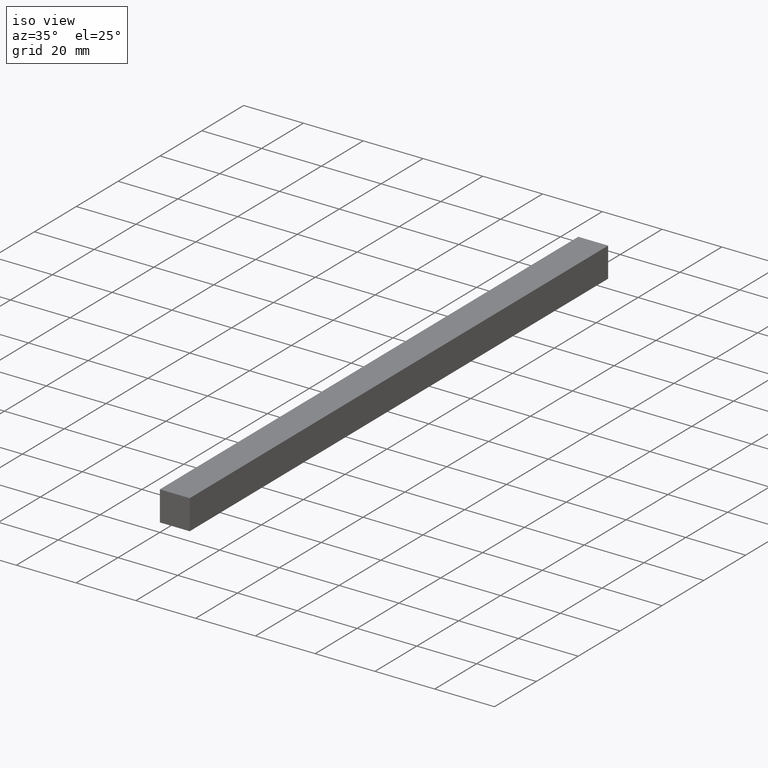
[diagram: clean part render]
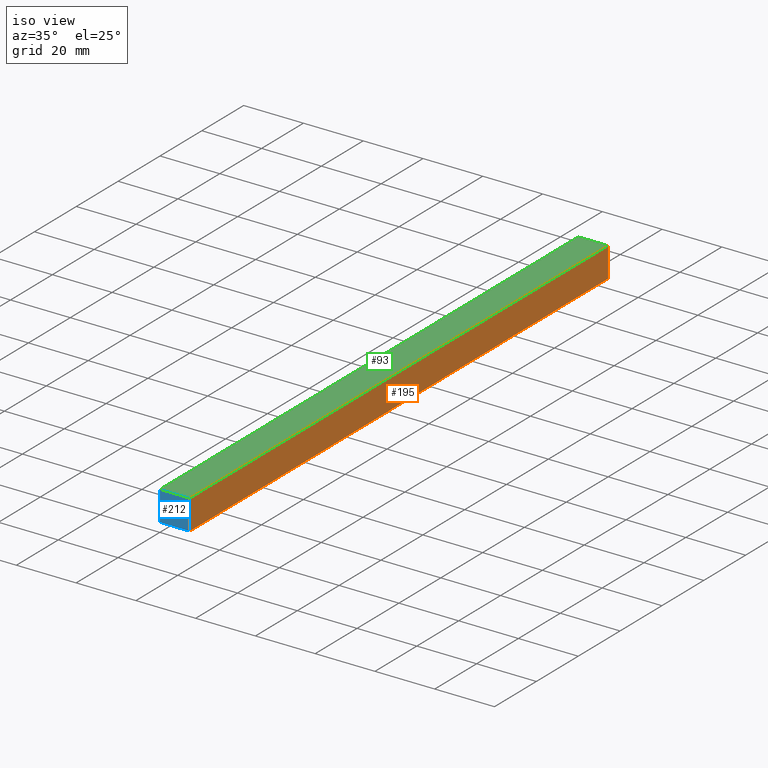
[diagram: same view with three faces highlighted in distinct colors, each labeled with its STEP entity id]
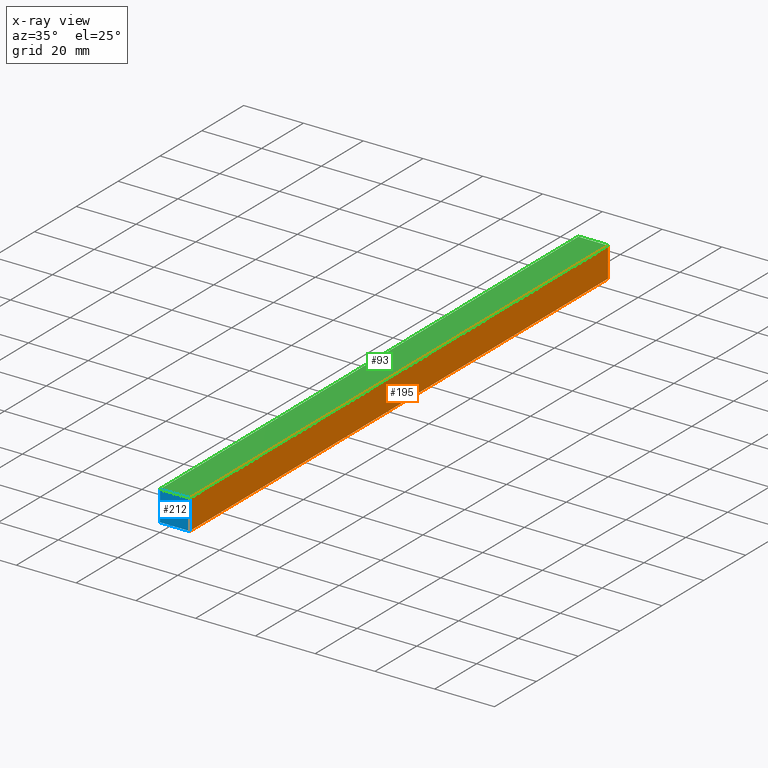
[diagram: x-ray of the same camera — body ghosted, the three highlighted faces saturated]
A machine part, iso view with three faces highlighted in distinct colors.
The next image is the same camera in x-ray (body ghosted, the three faces saturated) — at least one of them is partly hidden behind the body in this view.
Their STEP definitions:

[orange] entity #195 — the highlighted planar face has unit normal (1, 0, 0).
#5 = VERTEX_POINT ( 'NONE', #162 ) ;
#6 = DIRECTION ( 'NONE',  ( 0.0000000000000000000, -1.000000000000000000, 0.0000000000000000000 ) ) ;
#7 = FACE_OUTER_BOUND ( 'NONE', #209, .T. ) ;
#14 = LINE ( 'NONE', #127, #64 ) ;
#22 = VERTEX_POINT ( 'NONE', #87 ) ;
#27 = VECTOR ( 'NONE', #6, 1000.000000000000000 ) ;
#37 = VECTOR ( 'NONE', #148, 1000.000000000000000 ) ;
#38 = LINE ( 'NONE', #45, #27 ) ;
#42 = VERTEX_POINT ( 'NONE', #95 ) ;
#45 = CARTESIAN_POINT ( 'NONE',  ( 10.00000000000000000, 1000.000000000000000, 0.0000000000000000000 ) ) ;
#48 = VERTEX_POINT ( 'NONE', #170 ) ;
#49 = LINE ( 'NONE', #206, #199 ) ;
#51 = EDGE_CURVE ( 'NONE', #5, #48, #38, .T. ) ;
#61 = DIRECTION ( 'NONE',  ( -0.0000000000000000000, -0.0000000000000000000, 1.000000000000000000 ) ) ;
#64 = VECTOR ( 'NONE', #61, 1000.000000000000000 ) ;
#73 = AXIS2_PLACEMENT_3D ( 'NONE', #172, #119, #129 ) ;
#87 = CARTESIAN_POINT ( 'NONE',  ( 10.00000000000000000, 0.0000000000000000000, 10.00000000000000000 ) ) ;
#95 = CARTESIAN_POINT ( 'NONE',  ( 10.00000000000000000, 200.0000000000000000, 10.00000000000000000 ) ) ;
#119 = DIRECTION ( 'NONE',  ( 1.000000000000000000, 0.0000000000000000000, 0.0000000000000000000 ) ) ;
#120 = ORIENTED_EDGE ( 'NONE', *, *, #194, .T. ) ;
#127 = CARTESIAN_POINT ( 'NONE',  ( 10.00000000000000000, 0.0000000000000000000, 0.0000000000000000000 ) ) ;
#129 = DIRECTION ( 'NONE',  ( 0.0000000000000000000, 0.0000000000000000000, -1.000000000000000000 ) ) ;
#148 = DIRECTION ( 'NONE',  ( 0.0000000000000000000, -1.000000000000000000, 0.0000000000000000000 ) ) ;
#149 = ORIENTED_EDGE ( 'NONE', *, *, #51, .F. ) ;
#159 = CARTESIAN_POINT ( 'NONE',  ( 10.00000000000000000, 1000.000000000000000, 10.00000000000000000 ) ) ;
#162 = CARTESIAN_POINT ( 'NONE',  ( 10.00000000000000000, 200.0000000000000000, 0.0000000000000000000 ) ) ;
#167 = PLANE ( 'NONE',  #73 ) ;
#169 = EDGE_CURVE ( 'NONE', #48, #22, #14, .T. ) ;
#170 = CARTESIAN_POINT ( 'NONE',  ( 10.00000000000000000, 0.0000000000000000000, 0.0000000000000000000 ) ) ;
#172 = CARTESIAN_POINT ( 'NONE',  ( 10.00000000000000000, 1000.000000000000000, 0.0000000000000000000 ) ) ;
#184 = LINE ( 'NONE', #159, #37 ) ;
#190 = ORIENTED_EDGE ( 'NONE', *, *, #169, .F. ) ;
#194 = EDGE_CURVE ( 'NONE', #42, #22, #184, .T. ) ;
#195 = ADVANCED_FACE ( 'NONE', ( #7 ), #167, .T. ) ;
#196 = EDGE_CURVE ( 'NONE', #5, #42, #49, .T. ) ;
#199 = VECTOR ( 'NONE', #226, 1000.000000000000000 ) ;
#206 = CARTESIAN_POINT ( 'NONE',  ( 10.00000000000000000, 200.0000000000000000, 0.0000000000000000000 ) ) ;
#209 = EDGE_LOOP ( 'NONE', ( #190, #149, #218, #120 ) ) ;
#218 = ORIENTED_EDGE ( 'NONE', *, *, #196, .T. ) ;
#226 = DIRECTION ( 'NONE',  ( -0.0000000000000000000, -0.0000000000000000000, 1.000000000000000000 ) ) ;

[blue] entity #212 — the highlighted planar face has unit normal (0, 1, 0).
#14 = LINE ( 'NONE', #127, #64 ) ;
#16 = EDGE_CURVE ( 'NONE', #62, #118, #231, .T. ) ;
#18 = PLANE ( 'NONE',  #99 ) ;
#22 = VERTEX_POINT ( 'NONE', #87 ) ;
#24 = DIRECTION ( 'NONE',  ( -0.0000000000000000000, 1.000000000000000000, 0.0000000000000000000 ) ) ;
#36 = DIRECTION ( 'NONE',  ( -1.000000000000000000, -0.0000000000000000000, -0.0000000000000000000 ) ) ;
#47 = LINE ( 'NONE', #140, #115 ) ;
#48 = VERTEX_POINT ( 'NONE', #170 ) ;
#61 = DIRECTION ( 'NONE',  ( -0.0000000000000000000, -0.0000000000000000000, 1.000000000000000000 ) ) ;
#62 = VERTEX_POINT ( 'NONE', #211 ) ;
#64 = VECTOR ( 'NONE', #61, 1000.000000000000000 ) ;
#65 = CARTESIAN_POINT ( 'NONE',  ( 0.0000000000000000000, 0.0000000000000000000, 0.0000000000000000000 ) ) ;
#69 = ORIENTED_EDGE ( 'NONE', *, *, #169, .T. ) ;
#72 = LINE ( 'NONE', #85, #123 ) ;
#74 = VECTOR ( 'NONE', #124, 1000.000000000000000 ) ;
#85 = CARTESIAN_POINT ( 'NONE',  ( 0.0000000000000000000, 0.0000000000000000000, 10.00000000000000000 ) ) ;
#87 = CARTESIAN_POINT ( 'NONE',  ( 10.00000000000000000, 0.0000000000000000000, 10.00000000000000000 ) ) ;
#99 = AXIS2_PLACEMENT_3D ( 'NONE', #65, #24, #163 ) ;
#113 = ORIENTED_EDGE ( 'NONE', *, *, #179, .T. ) ;
#115 = VECTOR ( 'NONE', #151, 1000.000000000000000 ) ;
#116 = CARTESIAN_POINT ( 'NONE',  ( 0.0000000000000000000, 0.0000000000000000000, 0.0000000000000000000 ) ) ;
#118 = VERTEX_POINT ( 'NONE', #193 ) ;
#123 = VECTOR ( 'NONE', #36, 1000.000000000000000 ) ;
#124 = DIRECTION ( 'NONE',  ( -0.0000000000000000000, -0.0000000000000000000, -1.000000000000000000 ) ) ;
#127 = CARTESIAN_POINT ( 'NONE',  ( 10.00000000000000000, 0.0000000000000000000, 0.0000000000000000000 ) ) ;
#131 = EDGE_CURVE ( 'NONE', #118, #48, #47, .T. ) ;
#137 = ORIENTED_EDGE ( 'NONE', *, *, #131, .T. ) ;
#140 = CARTESIAN_POINT ( 'NONE',  ( 0.0000000000000000000, 0.0000000000000000000, 0.0000000000000000000 ) ) ;
#143 = FACE_OUTER_BOUND ( 'NONE', #202, .T. ) ;
#151 = DIRECTION ( 'NONE',  ( 1.000000000000000000, -0.0000000000000000000, -0.0000000000000000000 ) ) ;
#163 = DIRECTION ( 'NONE',  ( 1.000000000000000000, 0.0000000000000000000, 0.0000000000000000000 ) ) ;
#169 = EDGE_CURVE ( 'NONE', #48, #22, #14, .T. ) ;
#170 = CARTESIAN_POINT ( 'NONE',  ( 10.00000000000000000, 0.0000000000000000000, 0.0000000000000000000 ) ) ;
#179 = EDGE_CURVE ( 'NONE', #22, #62, #72, .T. ) ;
#193 = CARTESIAN_POINT ( 'NONE',  ( 0.0000000000000000000, 0.0000000000000000000, 0.0000000000000000000 ) ) ;
#202 = EDGE_LOOP ( 'NONE', ( #113, #214, #137, #69 ) ) ;
#211 = CARTESIAN_POINT ( 'NONE',  ( 0.0000000000000000000, 0.0000000000000000000, 10.00000000000000000 ) ) ;
#212 = ADVANCED_FACE ( 'NONE', ( #143 ), #18, .F. ) ;
#214 = ORIENTED_EDGE ( 'NONE', *, *, #16, .T. ) ;
#231 = LINE ( 'NONE', #116, #74 ) ;

[green] entity #93 — the highlighted planar face has unit normal (0, 0, 1).
#12 = CARTESIAN_POINT ( 'NONE',  ( 0.0000000000000000000, 200.0000000000000000, 10.00000000000000000 ) ) ;
#21 = DIRECTION ( 'NONE',  ( 0.0000000000000000000, 0.0000000000000000000, 1.000000000000000000 ) ) ;
#22 = VERTEX_POINT ( 'NONE', #87 ) ;
#30 = FACE_OUTER_BOUND ( 'NONE', #108, .T. ) ;
#34 = VERTEX_POINT ( 'NONE', #12 ) ;
#36 = DIRECTION ( 'NONE',  ( -1.000000000000000000, -0.0000000000000000000, -0.0000000000000000000 ) ) ;
#37 = VECTOR ( 'NONE', #148, 1000.000000000000000 ) ;
#42 = VERTEX_POINT ( 'NONE', #95 ) ;
#43 = VECTOR ( 'NONE', #208, 1000.000000000000000 ) ;
#62 = VERTEX_POINT ( 'NONE', #211 ) ;
#72 = LINE ( 'NONE', #85, #123 ) ;
#85 = CARTESIAN_POINT ( 'NONE',  ( 0.0000000000000000000, 0.0000000000000000000, 10.00000000000000000 ) ) ;
#87 = CARTESIAN_POINT ( 'NONE',  ( 10.00000000000000000, 0.0000000000000000000, 10.00000000000000000 ) ) ;
#89 = ORIENTED_EDGE ( 'NONE', *, *, #179, .F. ) ;
#90 = VECTOR ( 'NONE', #192, 1000.000000000000000 ) ;
#93 = ADVANCED_FACE ( 'NONE', ( #30 ), #114, .T. ) ;
#95 = CARTESIAN_POINT ( 'NONE',  ( 10.00000000000000000, 200.0000000000000000, 10.00000000000000000 ) ) ;
#108 = EDGE_LOOP ( 'NONE', ( #89, #154, #200, #157 ) ) ;
#114 = PLANE ( 'NONE',  #235 ) ;
#123 = VECTOR ( 'NONE', #36, 1000.000000000000000 ) ;
#126 = LINE ( 'NONE', #204, #90 ) ;
#147 = CARTESIAN_POINT ( 'NONE',  ( 10.00000000000000000, 1000.000000000000000, 10.00000000000000000 ) ) ;
#148 = DIRECTION ( 'NONE',  ( 0.0000000000000000000, -1.000000000000000000, 0.0000000000000000000 ) ) ;
#154 = ORIENTED_EDGE ( 'NONE', *, *, #194, .F. ) ;
#157 = ORIENTED_EDGE ( 'NONE', *, *, #198, .T. ) ;
#159 = CARTESIAN_POINT ( 'NONE',  ( 10.00000000000000000, 1000.000000000000000, 10.00000000000000000 ) ) ;
#179 = EDGE_CURVE ( 'NONE', #22, #62, #72, .T. ) ;
#182 = CARTESIAN_POINT ( 'NONE',  ( 0.0000000000000000000, 200.0000000000000000, 10.00000000000000000 ) ) ;
#183 = DIRECTION ( 'NONE',  ( 1.000000000000000000, 0.0000000000000000000, 0.0000000000000000000 ) ) ;
#184 = LINE ( 'NONE', #159, #37 ) ;
#192 = DIRECTION ( 'NONE',  ( 0.0000000000000000000, -1.000000000000000000, 0.0000000000000000000 ) ) ;
#194 = EDGE_CURVE ( 'NONE', #42, #22, #184, .T. ) ;
#198 = EDGE_CURVE ( 'NONE', #34, #62, #126, .T. ) ;
#200 = ORIENTED_EDGE ( 'NONE', *, *, #232, .T. ) ;
#204 = CARTESIAN_POINT ( 'NONE',  ( 0.0000000000000000000, 1000.000000000000000, 10.00000000000000000 ) ) ;
#208 = DIRECTION ( 'NONE',  ( -1.000000000000000000, -0.0000000000000000000, -0.0000000000000000000 ) ) ;
#211 = CARTESIAN_POINT ( 'NONE',  ( 0.0000000000000000000, 0.0000000000000000000, 10.00000000000000000 ) ) ;
#228 = LINE ( 'NONE', #182, #43 ) ;
#232 = EDGE_CURVE ( 'NONE', #42, #34, #228, .T. ) ;
#235 = AXIS2_PLACEMENT_3D ( 'NONE', #147, #21, #183 ) ;